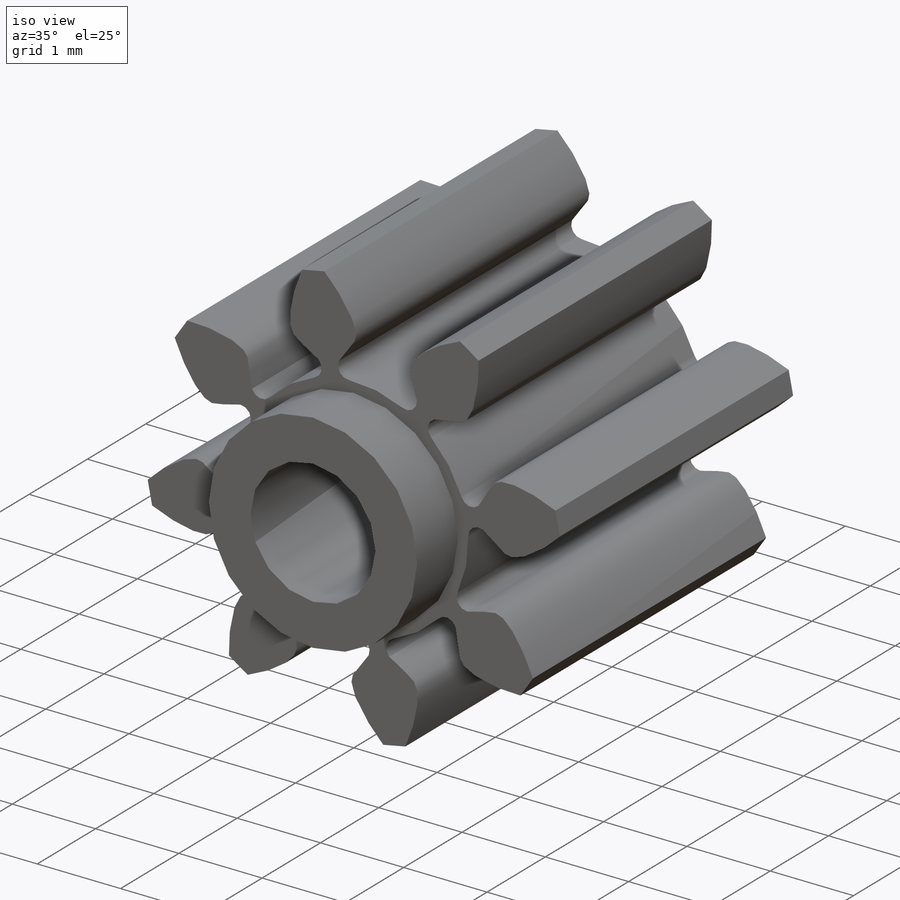
[diagram: iso view]
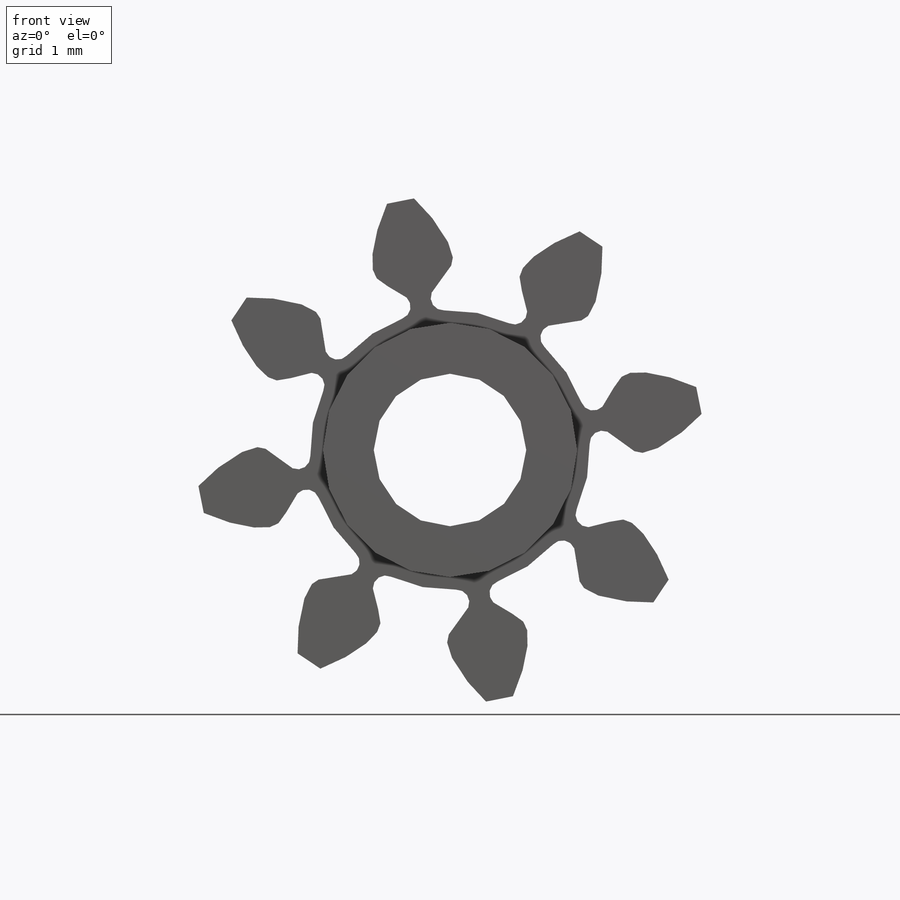
[diagram: front view]
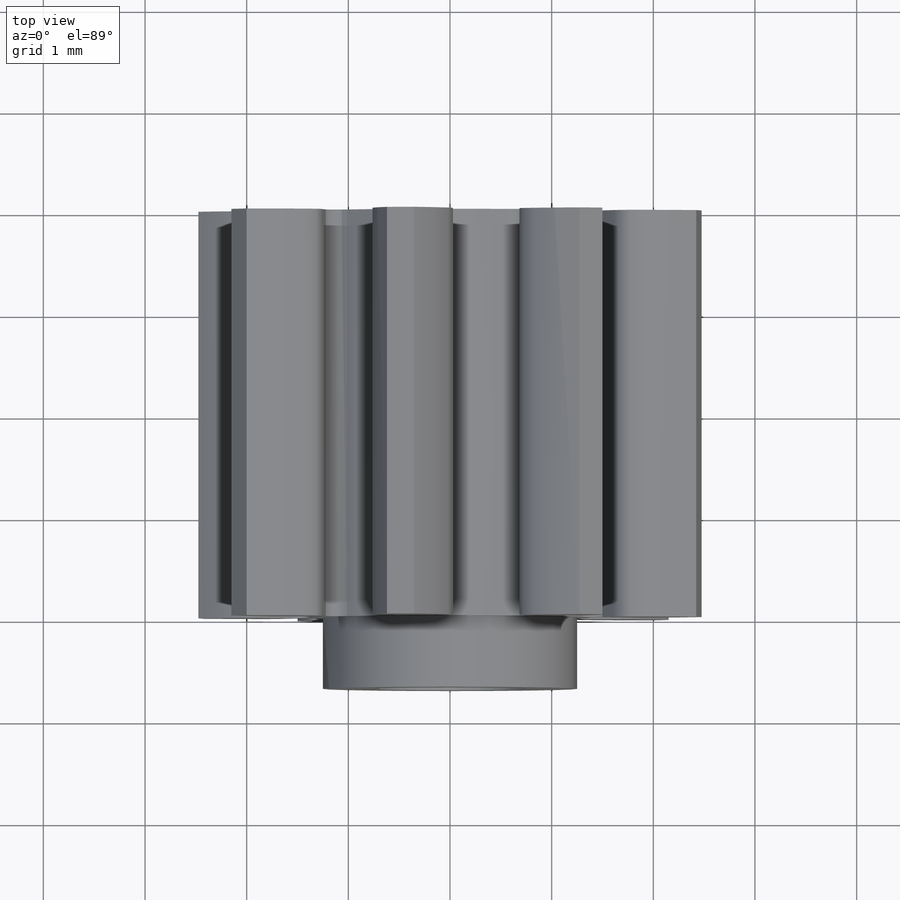
[diagram: top view]
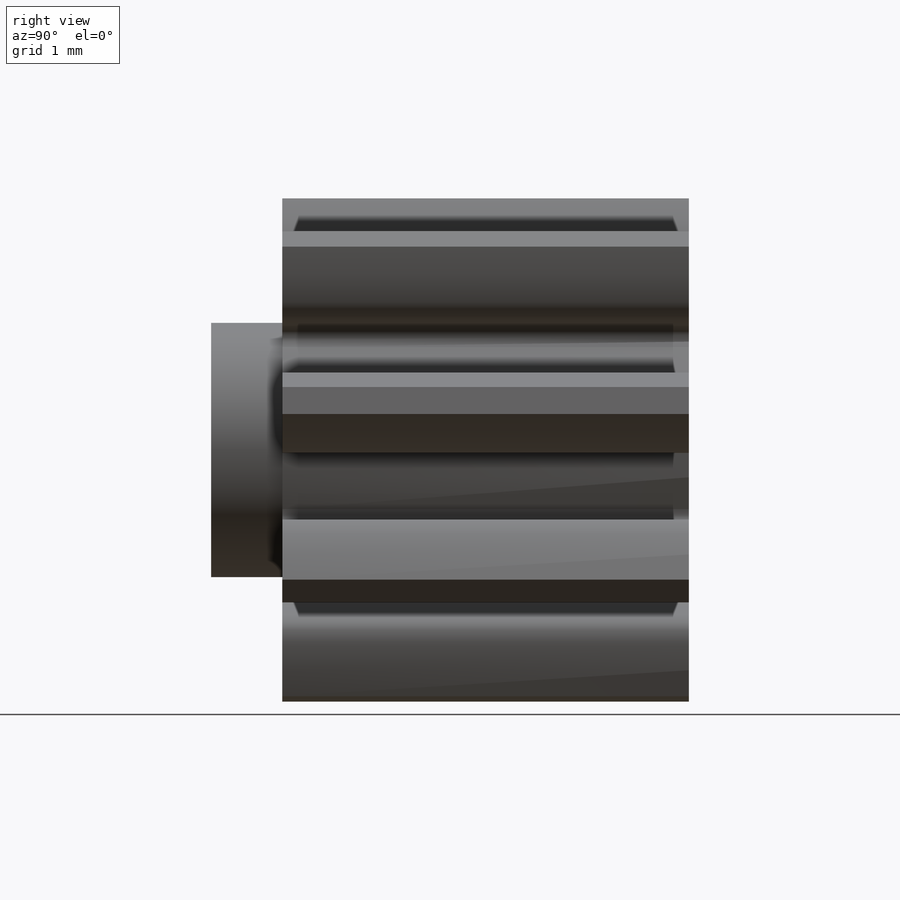
[diagram: right view]
SOLIDWORKS PART (.sldprt)
format: sldprt  version: not decoded by parser v0  size: 339,456 bytes
history: native  units: mm
features: plane x6, sketch x5, extrude x3, cut_extrude x2, material x1, fillet x1, pattern_circular x1 (+8 scaffold rows collapsed)
feature tree (27):
  scaffold x8  (default folders/planes/origin — collapsed)
  material  "Acier allié"
  plane  "Plan1"
  plane  "Plan2"
  plane  "Plan3"
  sketch  "Esquisse1"  dims[Dp=2.75mm]
  sketch  "Esquisse2"  dims[c1.Db=3.7587mm c1.Dn=4.0mm c1.Dt=5.0mm c1.m=0.5mm c1.D2=7.0mm c1.ap=20.0deg c1.D1=~9.395278mm c2.D1=20.854deg c2.D2=~9.395278mm c3.D2=~24.138828deg c3.D1=8.0mm c3.Tn=~0.853707deg c4.D2=8.0mm c4.Tt=~9.001167deg c4.D3=9.5mm c4.Ts=~11.247162deg]
  extrude  "Base-Extrusion"  Depth=4mm
  plane  "Plan median"  Offset=2mm
  extrude  "Boss.-Extru.1"  Depth=4mm
  fillet  "Congé1"  Radius=0.125mm
  pattern_circular  "Répétition circulaire1"  Count=8 Angle=360deg
  sketch  "Esquisse5"  dims[D1=2.5mm]
  extrude  "Extrusion1"  Depth=0.7mm
  sketch  "Esquisse3"  dims[D1=1.5mm]
  cut_extrude  "Enlèv. mat.-Extru.2"  [1 undecoded]
  sketch  "Esquisse4"
  cut_extrude  "Cylindre primitif"  [1 undecoded]
  plane  "Plan médian dent"
  plane  "Plan médian creux"
decode coverage: 9 of 12 modeling features carry decoded parameters
note: ~ marks probable driven/reference dimensions
note: 2 parameter values undecoded
note: suppression state not decoded; provenance and decode notes live in map.json
